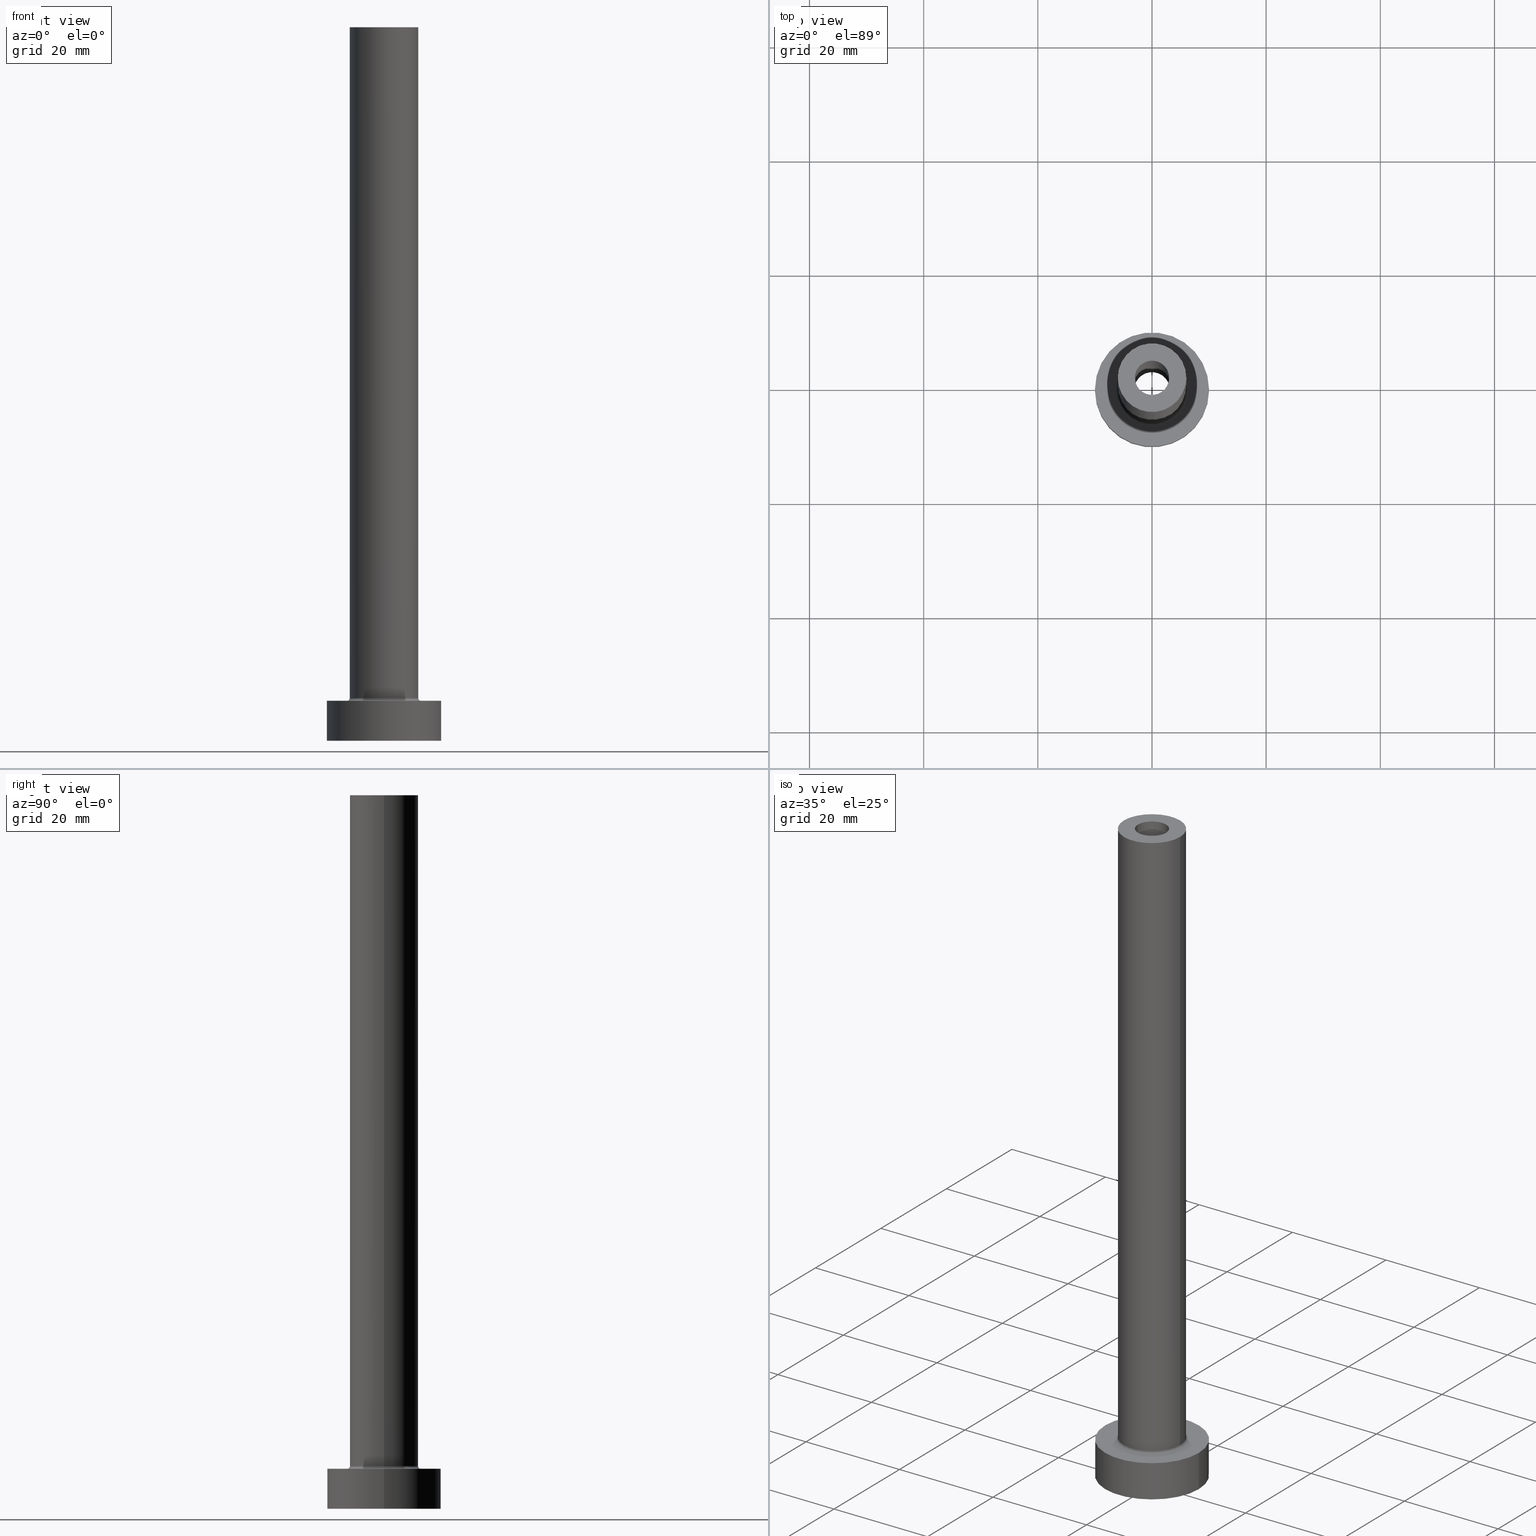
[diagram: canonical four-view strip — front | top / right | iso, engineering-drawing reading convention]
A machine part, canonical four-view strip (front | top / right | iso — engineering-drawing reading convention). The complete STEP part file that produces these views, byte-faithful:
ISO-10303-21;
HEADER;
FILE_DESCRIPTION (( 'STEP AP203' ),
    '1' );
FILE_NAME ('9289.STEP',
    '2023-02-13T15:02:41',
    ( '' ),
    ( '' ),
    'SwSTEP 2.0',
    'SolidWorks 2019',
    '' );
FILE_SCHEMA (( 'CONFIG_CONTROL_DESIGN' ));
ENDSEC;

DATA;
#1 = PERSON_AND_ORGANIZATION ( #332, #85 ) ;
#2 = DIRECTION ( 'NONE',  ( 0.000000000000000000, 0.000000000000000000, -1.000000000000000000 ) ) ;
#3 = ADVANCED_FACE ( 'NONE', ( #134 ), #59, .T. ) ;
#4 = AXIS2_PLACEMENT_3D ( 'NONE', #251, #255, #392 ) ;
#5 = APPROVAL_PERSON_ORGANIZATION ( #451, #344, #380 ) ;
#6 = ORIENTED_EDGE ( 'NONE', *, *, #436, .F. ) ;
#7 = ORIENTED_EDGE ( 'NONE', *, *, #409, .F. ) ;
#8 = CYLINDRICAL_SURFACE ( 'NONE', #91, 3.150000000000000355 ) ;
#9 = EDGE_LOOP ( 'NONE', ( #443, #7 ) ) ;
#10 = DIRECTION ( 'NONE',  ( -1.000000000000000000, 0.000000000000000000, 0.000000000000000000 ) ) ;
#11 = EDGE_LOOP ( 'NONE', ( #28, #334, #131, #123 ) ) ;
#12 = APPROVAL_ROLE ( '' ) ;
#13 = DIRECTION ( 'NONE',  ( 0.000000000000000000, 0.000000000000000000, -1.000000000000000000 ) ) ;
#14 = LINE ( 'NONE', #406, #390 ) ;
#15 = ORIENTED_EDGE ( 'NONE', *, *, #158, .T. ) ;
#16 = ADVANCED_FACE ( 'NONE', ( #280 ), #18, .F. ) ;
#17 = DIRECTION ( 'NONE',  ( -0.000000000000000000, -0.000000000000000000, -1.000000000000000000 ) ) ;
#18 = TOROIDAL_SURFACE ( 'NONE', #357, 6.500000000000000888, 0.5000000000000000000 ) ;
#19 = AXIS2_PLACEMENT_3D ( 'NONE', #156, #424, #393 ) ;
#20 = APPROVAL_STATUS ( 'not_yet_approved' ) ;
#21 = DIRECTION ( 'NONE',  ( 1.224646799147353207E-16, 1.000000000000000000, -0.000000000000000000 ) ) ;
#22 = ORIENTED_EDGE ( 'NONE', *, *, #126, .F. ) ;
#23 = COORDINATED_UNIVERSAL_TIME_OFFSET ( 1, 0, .AHEAD. ) ;
#24 = DIRECTION ( 'NONE',  ( 1.000000000000000000, 0.000000000000000000, 0.000000000000000000 ) ) ;
#25 = PLANE ( 'NONE',  #260 ) ;
#26 = CIRCLE ( 'NONE', #228, 3.150000000000000355 ) ;
#27 = AXIS2_PLACEMENT_3D ( 'NONE', #178, #346, #351 ) ;
#28 = ORIENTED_EDGE ( 'NONE', *, *, #220, .F. ) ;
#29 = DIRECTION ( 'NONE',  ( 0.000000000000000000, 0.000000000000000000, 1.000000000000000000 ) ) ;
#30 = DIRECTION ( 'NONE',  ( 0.000000000000000000, 0.000000000000000000, 1.000000000000000000 ) ) ;
#31 = VERTEX_POINT ( 'NONE', #172 ) ;
#32 = CARTESIAN_POINT ( 'NONE',  ( 0.000000000000000000, 0.000000000000000000, 125.0000000000000000 ) ) ;
#33 = EDGE_CURVE ( 'NONE', #438, #63, #148, .T. ) ;
#34 = CARTESIAN_POINT ( 'NONE',  ( 0.000000000000000000, 0.000000000000000000, 125.0000000000000000 ) ) ;
#35 = PERSON_AND_ORGANIZATION ( #332, #85 ) ;
#36 = DIRECTION ( 'NONE',  ( 0.000000000000000000, 0.000000000000000000, -1.000000000000000000 ) ) ;
#37 = DIRECTION ( 'NONE',  ( 0.000000000000000000, 0.000000000000000000, -1.000000000000000000 ) ) ;
#38 = CARTESIAN_POINT ( 'NONE',  ( 0.000000000000000000, 0.000000000000000000, 80.00000000000000000 ) ) ;
#39 = EDGE_CURVE ( 'NONE', #31, #76, #341, .T. ) ;
#40 = AXIS2_PLACEMENT_3D ( 'NONE', #194, #371, #238 ) ;
#41 = DIRECTION ( 'NONE',  ( 0.000000000000000000, 0.000000000000000000, -1.000000000000000000 ) ) ;
#42 = PRODUCT_DEFINITION_FORMATION_WITH_SPECIFIED_SOURCE ( 'LIBOVOLN�', '', #188, .NOT_KNOWN. ) ;
#43 = FACE_BOUND ( 'NONE', #429, .T. ) ;
#44 = PRODUCT_DEFINITION ( 'NEZN�M�', '', #42, #143 ) ;
#45 = FACE_OUTER_BOUND ( 'NONE', #399, .T. ) ;
#46 = EDGE_LOOP ( 'NONE', ( #125, #381, #368, #298 ) ) ;
#47 = EDGE_LOOP ( 'NONE', ( #410, #118, #292, #294 ) ) ;
#48 = CIRCLE ( 'NONE', #320, 6.500000000000000888 ) ;
#49 = FACE_OUTER_BOUND ( 'NONE', #297, .T. ) ;
#50 = ORIENTED_EDGE ( 'NONE', *, *, #279, .T. ) ;
#51 = VERTEX_POINT ( 'NONE', #236 ) ;
#52 = LINE ( 'NONE', #197, #303 ) ;
#53 = CARTESIAN_POINT ( 'NONE',  ( 0.000000000000000000, 0.000000000000000000, 7.000000000000000000 ) ) ;
#54 = ADVANCED_FACE ( 'NONE', ( #208, #56 ), #174, .F. ) ;
#55 = ORIENTED_EDGE ( 'NONE', *, *, #239, .F. ) ;
#56 = FACE_OUTER_BOUND ( 'NONE', #301, .T. ) ;
#57 = CYLINDRICAL_SURFACE ( 'NONE', #363, 10.00000000000000000 ) ;
#58 = AXIS2_PLACEMENT_3D ( 'NONE', #418, #2, #283 ) ;
#59 = CYLINDRICAL_SURFACE ( 'NONE', #77, 6.000000000000000888 ) ;
#60 = DIRECTION ( 'NONE',  ( -0.000000000000000000, -0.000000000000000000, -1.000000000000000000 ) ) ;
#61 = ADVANCED_FACE ( 'NONE', ( #412, #96 ), #25, .T. ) ;
#62 = ORIENTED_EDGE ( 'NONE', *, *, #330, .F. ) ;
#63 = VERTEX_POINT ( 'NONE', #338 ) ;
#64 = DIRECTION ( 'NONE',  ( 1.000000000000000000, 0.000000000000000000, 0.000000000000000000 ) ) ;
#65 = VECTOR ( 'NONE', #36, 1000.000000000000000 ) ;
#66 = DATE_TIME_ROLE ( 'classification_date' ) ;
#67 = DIRECTION ( 'NONE',  ( -1.000000000000000000, 0.000000000000000000, 0.000000000000000000 ) ) ;
#68 = EDGE_CURVE ( 'NONE', #218, #31, #14, .T. ) ;
#69 = CARTESIAN_POINT ( 'NONE',  ( 0.000000000000000000, 0.000000000000000000, 0.000000000000000000 ) ) ;
#70 = DIRECTION ( 'NONE',  ( 1.000000000000000000, 0.000000000000000000, 0.000000000000000000 ) ) ;
#71 = DIRECTION ( 'NONE',  ( 1.000000000000000000, 0.000000000000000000, 0.000000000000000000 ) ) ;
#72 = PERSON_AND_ORGANIZATION_ROLE ( 'design_owner' ) ;
#73 = CARTESIAN_POINT ( 'NONE',  ( 6.000000000000000888, 7.347880794884120722E-16, 7.500000000000007105 ) ) ;
#74 = CARTESIAN_POINT ( 'NONE',  ( 6.000000000000000888, 7.347880794884120722E-16, 125.0000000000000000 ) ) ;
#75 = CC_DESIGN_PERSON_AND_ORGANIZATION_ASSIGNMENT ( #89, #132, ( #44 ) ) ;
#76 = VERTEX_POINT ( 'NONE', #169 ) ;
#77 = AXIS2_PLACEMENT_3D ( 'NONE', #205, #60, #347 ) ;
#78 = AXIS2_PLACEMENT_3D ( 'NONE', #69, #254, #216 ) ;
#79 = CIRCLE ( 'NONE', #117, 6.000000000000000888 ) ;
#80 = ORIENTED_EDGE ( 'NONE', *, *, #33, .F. ) ;
#81 = PLANE ( 'NONE',  #441 ) ;
#82 = EDGE_LOOP ( 'NONE', ( #6, #340, #293, #234 ) ) ;
#83 = CIRCLE ( 'NONE', #223, 6.000000000000000888 ) ;
#84 = CARTESIAN_POINT ( 'NONE',  ( -10.00000000000000000, 0.000000000000000000, 7.000000000000000000 ) ) ;
#85 = ORGANIZATION ( 'NEUR�EN�', 'NEUR�EN�', '' ) ;
#86 = ORIENTED_EDGE ( 'NONE', *, *, #409, .T. ) ;
#87 = DIRECTION ( 'NONE',  ( 0.000000000000000000, 0.000000000000000000, 1.000000000000000000 ) ) ;
#88 = VERTEX_POINT ( 'NONE', #304 ) ;
#89 = PERSON_AND_ORGANIZATION ( #332, #85 ) ;
#90 = VERTEX_POINT ( 'NONE', #73 ) ;
#91 = AXIS2_PLACEMENT_3D ( 'NONE', #119, #13, #265 ) ;
#92 = SECURITY_CLASSIFICATION ( '', '', #219 ) ;
#93 = EDGE_LOOP ( 'NONE', ( #449, #242, #435, #135 ) ) ;
#94 = APPROVAL ( #317, 'NEUR�EN�' ) ;
#95 = DIRECTION ( 'NONE',  ( 0.000000000000000000, 0.000000000000000000, 1.000000000000000000 ) ) ;
#96 = FACE_OUTER_BOUND ( 'NONE', #121, .T. ) ;
#97 = CARTESIAN_POINT ( 'NONE',  ( 0.000000000000000000, 0.000000000000000000, 7.000000000000000000 ) ) ;
#98 = APPLICATION_CONTEXT ( 'configuration controlled 3d designs of mechanical parts and assemblies' ) ;
#99 = CARTESIAN_POINT ( 'NONE',  ( 3.150000000000000355, 3.857637417314163182E-16, 88.90954544295050255 ) ) ;
#100 = FACE_OUTER_BOUND ( 'NONE', #46, .T. ) ;
#101 = EDGE_CURVE ( 'NONE', #272, #414, #26, .T. ) ;
#102 = VECTOR ( 'NONE', #458, 1000.000000000000000 ) ;
#103 = DATE_AND_TIME ( #389, #261 ) ;
#104 = DIRECTION ( 'NONE',  ( 0.000000000000000000, 0.000000000000000000, 1.000000000000000000 ) ) ;
#105 = DIRECTION ( 'NONE',  ( 1.000000000000000000, 0.000000000000000000, 0.000000000000000000 ) ) ;
#106 = CARTESIAN_POINT ( 'NONE',  ( 0.000000000000000000, 0.000000000000000000, 0.000000000000000000 ) ) ;
#107 = SHAPE_DEFINITION_REPRESENTATION ( #113, #207 ) ;
#108 = CARTESIAN_POINT ( 'NONE',  ( -3.150000000000000355, 0.000000000000000000, 0.000000000000000000 ) ) ;
#109 = CALENDAR_DATE ( 2023, 13, 2 ) ;
#110 = EDGE_CURVE ( 'NONE', #90, #31, #210, .T. ) ;
#111 = LINE ( 'NONE', #74, #155 ) ;
#112 =( NAMED_UNIT ( * ) PLANE_ANGLE_UNIT ( ) SI_UNIT ( $, .RADIAN. ) );
#113 = PRODUCT_DEFINITION_SHAPE ( 'NONE', 'NONE',  #44 ) ;
#114 = ORIENTED_EDGE ( 'NONE', *, *, #247, .T. ) ;
#115 = EDGE_CURVE ( 'NONE', #90, #227, #369, .T. ) ;
#116 = AXIS2_PLACEMENT_3D ( 'NONE', #306, #440, #270 ) ;
#117 = AXIS2_PLACEMENT_3D ( 'NONE', #141, #246, #386 ) ;
#118 = ORIENTED_EDGE ( 'NONE', *, *, #326, .T. ) ;
#119 = CARTESIAN_POINT ( 'NONE',  ( 0.000000000000000000, 0.000000000000000000, 88.90954544295050255 ) ) ;
#120 = ORIENTED_EDGE ( 'NONE', *, *, #115, .T. ) ;
#121 = EDGE_LOOP ( 'NONE', ( #447, #367 ) ) ;
#122 = CARTESIAN_POINT ( 'NONE',  ( 0.000000000000000000, 0.000000000000000000, 88.90954544295050255 ) ) ;
#123 = ORIENTED_EDGE ( 'NONE', *, *, #101, .T. ) ;
#124 = APPLICATION_CONTEXT ( 'configuration controlled 3d designs of mechanical parts and assemblies' ) ;
#125 = ORIENTED_EDGE ( 'NONE', *, *, #136, .F. ) ;
#126 = EDGE_CURVE ( 'NONE', #88, #345, #192, .T. ) ;
#127 = CIRCLE ( 'NONE', #362, 6.500000000000000888 ) ;
#128 = DIRECTION ( 'NONE',  ( 0.000000000000000000, 0.000000000000000000, -1.000000000000000000 ) ) ;
#129 = AXIS2_PLACEMENT_3D ( 'NONE', #312, #95, #411 ) ;
#130 = ORIENTED_EDGE ( 'NONE', *, *, #136, .T. ) ;
#131 = ORIENTED_EDGE ( 'NONE', *, *, #364, .T. ) ;
#132 = PERSON_AND_ORGANIZATION_ROLE ( 'creator' ) ;
#133 = DIRECTION ( 'NONE',  ( -0.000000000000000000, -0.000000000000000000, -1.000000000000000000 ) ) ;
#134 = FACE_OUTER_BOUND ( 'NONE', #231, .T. ) ;
#135 = ORIENTED_EDGE ( 'NONE', *, *, #115, .F. ) ;
#136 = EDGE_CURVE ( 'NONE', #51, #233, #319, .T. ) ;
#137 = DIRECTION ( 'NONE',  ( 0.000000000000000000, 0.000000000000000000, -1.000000000000000000 ) ) ;
#138 = CLOSED_SHELL ( 'NONE', ( #196, #285, #16, #252, #395, #170, #61, #54, #3, #295, #212, #309, #300, #417 ) ) ;
#139 = CARTESIAN_POINT ( 'NONE',  ( 0.000000000000000000, 0.000000000000000000, 0.000000000000000000 ) ) ;
#140 = ORIENTED_EDGE ( 'NONE', *, *, #361, .F. ) ;
#141 = CARTESIAN_POINT ( 'NONE',  ( 0.000000000000000000, 0.000000000000000000, 7.500000000000007105 ) ) ;
#142 = EDGE_LOOP ( 'NONE', ( #193, #245 ) ) ;
#143 = DESIGN_CONTEXT ( 'detailed design', #124, 'design' ) ;
#144 = CYLINDRICAL_SURFACE ( 'NONE', #284, 3.000000000000000444 ) ;
#145 = CARTESIAN_POINT ( 'NONE',  ( 6.500000000000000888, 0.000000000000000000, 7.500000000000007105 ) ) ;
#146 = MANIFOLD_SOLID_BREP ( 'Odebrat vysunut�m4', #138 ) ;
#147 = CYLINDRICAL_SURFACE ( 'NONE', #328, 6.000000000000000888 ) ;
#148 = CIRCLE ( 'NONE', #116, 3.150000000000000355 ) ;
#149 = APPROVAL_PERSON_ORGANIZATION ( #359, #426, #12 ) ;
#150 = DIRECTION ( 'NONE',  ( -0.000000000000000000, -0.000000000000000000, -1.000000000000000000 ) ) ;
#151 = FACE_OUTER_BOUND ( 'NONE', #47, .T. ) ;
#152 = PERSON_AND_ORGANIZATION_ROLE ( 'design_supplier' ) ;
#153 = CARTESIAN_POINT ( 'NONE',  ( 10.00000000000000000, 1.224646799147353256E-15, 7.000000000000000000 ) ) ;
#154 = AXIS2_PLACEMENT_3D ( 'NONE', #187, #282, #67 ) ;
#155 = VECTOR ( 'NONE', #258, 1000.000000000000000 ) ;
#156 = CARTESIAN_POINT ( 'NONE',  ( 0.000000000000000000, 0.000000000000000000, 125.0000000000000000 ) ) ;
#157 = ORIENTED_EDGE ( 'NONE', *, *, #364, .F. ) ;
#158 = EDGE_CURVE ( 'NONE', #240, #160, #202, .T. ) ;
#159 = ORIENTED_EDGE ( 'NONE', *, *, #402, .T. ) ;
#160 = VERTEX_POINT ( 'NONE', #358 ) ;
#161 = AXIS2_PLACEMENT_3D ( 'NONE', #182, #422, #71 ) ;
#162 =( GEOMETRIC_REPRESENTATION_CONTEXT ( 3 ) GLOBAL_UNCERTAINTY_ASSIGNED_CONTEXT ( ( #314 ) ) GLOBAL_UNIT_ASSIGNED_CONTEXT ( ( #186, #112, #221 ) ) REPRESENTATION_CONTEXT ( 'NONE', 'WORKASPACE' ) );
#163 = ORIENTED_EDGE ( 'NONE', *, *, #247, .F. ) ;
#164 = CARTESIAN_POINT ( 'NONE',  ( 0.000000000000000000, 0.000000000000000000, 125.0000000000000000 ) ) ;
#165 = CC_DESIGN_PERSON_AND_ORGANIZATION_ASSIGNMENT ( #35, #72, ( #188 ) ) ;
#166 = ORIENTED_EDGE ( 'NONE', *, *, #220, .T. ) ;
#167 = CYLINDRICAL_SURFACE ( 'NONE', #229, 3.150000000000000355 ) ;
#168 = AXIS2_PLACEMENT_3D ( 'NONE', #164, #299, #437 ) ;
#169 = CARTESIAN_POINT ( 'NONE',  ( -6.500000000000000888, 7.960204194457796463E-16, 7.000000000000002665 ) ) ;
#170 = ADVANCED_FACE ( 'NONE', ( #100 ), #249, .T. ) ;
#171 = ORIENTED_EDGE ( 'NONE', *, *, #459, .T. ) ;
#172 = CARTESIAN_POINT ( 'NONE',  ( -6.000000000000000888, 0.000000000000000000, 7.500000000000007105 ) ) ;
#173 = TOROIDAL_SURFACE ( 'NONE', #161, 6.500000000000000888, 0.5000000000000000000 ) ;
#174 = PLANE ( 'NONE',  #275 ) ;
#175 = CALENDAR_DATE ( 2023, 13, 2 ) ;
#176 = CARTESIAN_POINT ( 'NONE',  ( 0.000000000000000000, 0.000000000000000000, 0.000000000000000000 ) ) ;
#177 = DIRECTION ( 'NONE',  ( -1.000000000000000000, 0.000000000000000000, 0.000000000000000000 ) ) ;
#178 = CARTESIAN_POINT ( 'NONE',  ( 0.000000000000000000, 0.000000000000000000, 0.000000000000000000 ) ) ;
#179 = DIRECTION ( 'NONE',  ( 1.000000000000000000, 0.000000000000000000, 0.000000000000000000 ) ) ;
#180 = ORIENTED_EDGE ( 'NONE', *, *, #110, .F. ) ;
#181 = PERSON_AND_ORGANIZATION_ROLE ( 'classification_officer' ) ;
#182 = CARTESIAN_POINT ( 'NONE',  ( 0.000000000000000000, 0.000000000000000000, 7.500000000000007105 ) ) ;
#183 = CC_DESIGN_SECURITY_CLASSIFICATION ( #92, ( #42 ) ) ;
#184 = DIRECTION ( 'NONE',  ( 0.000000000000000000, 0.000000000000000000, 1.000000000000000000 ) ) ;
#185 = CC_DESIGN_PERSON_AND_ORGANIZATION_ASSIGNMENT ( #1, #152, ( #42 ) ) ;
#186 =( LENGTH_UNIT ( ) NAMED_UNIT ( * ) SI_UNIT ( .MILLI., .METRE. ) );
#187 = CARTESIAN_POINT ( 'NONE',  ( 0.000000000000000000, 0.000000000000000000, 7.000000000000000000 ) ) ;
#188 = PRODUCT ( '9289', '9289', '', ( #354 ) ) ;
#189 = AXIS2_PLACEMENT_3D ( 'NONE', #374, #21, #308 ) ;
#190 = LOCAL_TIME ( 16, 2, 41.00000000000000000, #430 ) ;
#191 = ORIENTED_EDGE ( 'NONE', *, *, #428, .F. ) ;
#192 = CIRCLE ( 'NONE', #396, 3.000000000000000444 ) ;
#193 = ORIENTED_EDGE ( 'NONE', *, *, #239, .T. ) ;
#194 = CARTESIAN_POINT ( 'NONE',  ( 0.000000000000000000, 0.000000000000000000, 80.00000000000000000 ) ) ;
#195 = ORIENTED_EDGE ( 'NONE', *, *, #379, .F. ) ;
#196 = ADVANCED_FACE ( 'NONE', ( #151 ), #325, .F. ) ;
#197 = CARTESIAN_POINT ( 'NONE',  ( 3.000000000000000444, 3.673940397442059868E-16, 125.0000000000000000 ) ) ;
#198 = DIRECTION ( 'NONE',  ( 0.000000000000000000, 0.000000000000000000, 1.000000000000000000 ) ) ;
#199 = ORIENTED_EDGE ( 'NONE', *, *, #318, .F. ) ;
#200 = DIRECTION ( 'NONE',  ( 1.000000000000000000, 0.000000000000000000, -0.000000000000000000 ) ) ;
#201 = EDGE_CURVE ( 'NONE', #274, #51, #403, .T. ) ;
#202 = CIRCLE ( 'NONE', #455, 3.000000000000000444 ) ;
#203 = LOCAL_TIME ( 16, 2, 41.00000000000000000, #23 ) ;
#204 = DIRECTION ( 'NONE',  ( -1.000000000000000000, 0.000000000000000000, 0.000000000000000000 ) ) ;
#205 = CARTESIAN_POINT ( 'NONE',  ( 0.000000000000000000, 0.000000000000000000, 125.0000000000000000 ) ) ;
#206 = ORIENTED_EDGE ( 'NONE', *, *, #126, .T. ) ;
#207 = ADVANCED_BREP_SHAPE_REPRESENTATION ( '9289', ( #146, #78 ), #162 ) ;
#208 = FACE_BOUND ( 'NONE', #9, .T. ) ;
#209 = EDGE_LOOP ( 'NONE', ( #140, #130, #302, #62 ) ) ;
#210 = CIRCLE ( 'NONE', #4, 6.000000000000000888 ) ;
#211 = CARTESIAN_POINT ( 'NONE',  ( -10.00000000000000000, 0.000000000000000000, 0.000000000000000000 ) ) ;
#212 = ADVANCED_FACE ( 'NONE', ( #453 ), #173, .F. ) ;
#213 = APPROVAL_ROLE ( '' ) ;
#214 = DIRECTION ( 'NONE',  ( -0.000000000000000000, -0.000000000000000000, -1.000000000000000000 ) ) ;
#215 = DIRECTION ( 'NONE',  ( 1.000000000000000000, 0.000000000000000000, 0.000000000000000000 ) ) ;
#216 = DIRECTION ( 'NONE',  ( 1.000000000000000000, 0.000000000000000000, 0.000000000000000000 ) ) ;
#217 = CARTESIAN_POINT ( 'NONE',  ( -6.000000000000000888, 0.000000000000000000, 125.0000000000000000 ) ) ;
#218 = VERTEX_POINT ( 'NONE', #217 ) ;
#219 = SECURITY_CLASSIFICATION_LEVEL ( 'unclassified' ) ;
#220 = EDGE_CURVE ( 'NONE', #438, #414, #353, .T. ) ;
#221 =( NAMED_UNIT ( * ) SI_UNIT ( $, .STERADIAN. ) SOLID_ANGLE_UNIT ( ) );
#222 = CARTESIAN_POINT ( 'NONE',  ( -3.000000000000000444, 0.000000000000000000, 125.0000000000000000 ) ) ;
#223 = AXIS2_PLACEMENT_3D ( 'NONE', #32, #104, #64 ) ;
#224 = APPLICATION_PROTOCOL_DEFINITION ( 'international standard', 'config_control_design', 1994, #124 ) ;
#225 = DIRECTION ( 'NONE',  ( -0.000000000000000000, -0.000000000000000000, -1.000000000000000000 ) ) ;
#226 = APPLICATION_PROTOCOL_DEFINITION ( 'international standard', 'config_control_design', 1994, #98 ) ;
#227 = VERTEX_POINT ( 'NONE', #287 ) ;
#228 = AXIS2_PLACEMENT_3D ( 'NONE', #106, #225, #179 ) ;
#229 = AXIS2_PLACEMENT_3D ( 'NONE', #122, #439, #10 ) ;
#230 = CIRCLE ( 'NONE', #19, 6.000000000000000888 ) ;
#231 = EDGE_LOOP ( 'NONE', ( #191, #55, #407, #159 ) ) ;
#232 = EDGE_CURVE ( 'NONE', #76, #227, #48, .T. ) ;
#233 = VERTEX_POINT ( 'NONE', #385 ) ;
#234 = ORIENTED_EDGE ( 'NONE', *, *, #68, .F. ) ;
#235 = DIRECTION ( 'NONE',  ( 1.000000000000000000, 0.000000000000000000, -0.000000000000000000 ) ) ;
#236 = CARTESIAN_POINT ( 'NONE',  ( 10.00000000000000000, 1.224646799147353256E-15, 7.000000000000000000 ) ) ;
#237 = EDGE_LOOP ( 'NONE', ( #50, #423 ) ) ;
#238 = DIRECTION ( 'NONE',  ( 1.000000000000000000, 0.000000000000000000, -0.000000000000000000 ) ) ;
#239 = EDGE_CURVE ( 'NONE', #218, #349, #83, .T. ) ;
#240 = VERTEX_POINT ( 'NONE', #461 ) ;
#241 = CALENDAR_DATE ( 2023, 13, 2 ) ;
#242 = ORIENTED_EDGE ( 'NONE', *, *, #39, .T. ) ;
#243 = AXIS2_PLACEMENT_3D ( 'NONE', #38, #327, #105 ) ;
#244 = VERTEX_POINT ( 'NONE', #211 ) ;
#245 = ORIENTED_EDGE ( 'NONE', *, *, #436, .T. ) ;
#246 = DIRECTION ( 'NONE',  ( 0.000000000000000000, 0.000000000000000000, 1.000000000000000000 ) ) ;
#247 = EDGE_CURVE ( 'NONE', #63, #438, #431, .T. ) ;
#248 = DIRECTION ( 'NONE',  ( 1.000000000000000000, 0.000000000000000000, 0.000000000000000000 ) ) ;
#249 = CYLINDRICAL_SURFACE ( 'NONE', #154, 10.00000000000000000 ) ;
#250 = APPROVAL_DATE_TIME ( #460, #94 ) ;
#251 = CARTESIAN_POINT ( 'NONE',  ( 0.000000000000000000, 0.000000000000000000, 7.500000000000007105 ) ) ;
#252 = ADVANCED_FACE ( 'NONE', ( #427 ), #147, .T. ) ;
#253 = PERSON_AND_ORGANIZATION_ROLE ( 'creator' ) ;
#254 = DIRECTION ( 'NONE',  ( 0.000000000000000000, 0.000000000000000000, 1.000000000000000000 ) ) ;
#255 = DIRECTION ( 'NONE',  ( 0.000000000000000000, 0.000000000000000000, 1.000000000000000000 ) ) ;
#256 = DIRECTION ( 'NONE',  ( 0.000000000000000000, -1.000000000000000000, 0.000000000000000000 ) ) ;
#257 = AXIS2_PLACEMENT_3D ( 'NONE', #145, #256, #37 ) ;
#258 = DIRECTION ( 'NONE',  ( -0.000000000000000000, -0.000000000000000000, -1.000000000000000000 ) ) ;
#259 = PERSON_AND_ORGANIZATION ( #332, #85 ) ;
#260 = AXIS2_PLACEMENT_3D ( 'NONE', #53, #198, #200 ) ;
#261 = LOCAL_TIME ( 16, 2, 41.00000000000000000, #290 ) ;
#262 = CC_DESIGN_PERSON_AND_ORGANIZATION_ASSIGNMENT ( #415, #253, ( #42 ) ) ;
#263 = EDGE_LOOP ( 'NONE', ( #199, #383 ) ) ;
#264 = DATE_AND_TIME ( #333, #190 ) ;
#265 = DIRECTION ( 'NONE',  ( -1.000000000000000000, 0.000000000000000000, 0.000000000000000000 ) ) ;
#266 = DIRECTION ( 'NONE',  ( 0.000000000000000000, 0.000000000000000000, 1.000000000000000000 ) ) ;
#267 = EDGE_LOOP ( 'NONE', ( #376, #15, #394, #22 ) ) ;
#268 = LOCAL_TIME ( 16, 2, 41.00000000000000000, #356 ) ;
#269 = EDGE_CURVE ( 'NONE', #160, #345, #316, .T. ) ;
#270 = DIRECTION ( 'NONE',  ( 1.000000000000000000, 0.000000000000000000, 0.000000000000000000 ) ) ;
#271 = DIRECTION ( 'NONE',  ( -0.000000000000000000, -0.000000000000000000, -1.000000000000000000 ) ) ;
#272 = VERTEX_POINT ( 'NONE', #108 ) ;
#273 = DATE_AND_TIME ( #241, #203 ) ;
#274 = VERTEX_POINT ( 'NONE', #84 ) ;
#275 = AXIS2_PLACEMENT_3D ( 'NONE', #139, #313, #278 ) ;
#276 = AXIS2_PLACEMENT_3D ( 'NONE', #176, #271, #448 ) ;
#277 = CARTESIAN_POINT ( 'NONE',  ( -10.00000000000000000, 0.000000000000000000, 7.000000000000000000 ) ) ;
#278 = DIRECTION ( 'NONE',  ( 1.000000000000000000, 0.000000000000000000, -0.000000000000000000 ) ) ;
#279 = EDGE_CURVE ( 'NONE', #227, #76, #127, .T. ) ;
#280 = FACE_OUTER_BOUND ( 'NONE', #93, .T. ) ;
#281 = APPROVAL_DATE_TIME ( #315, #344 ) ;
#282 = DIRECTION ( 'NONE',  ( -0.000000000000000000, -0.000000000000000000, -1.000000000000000000 ) ) ;
#283 = DIRECTION ( 'NONE',  ( -1.000000000000000000, 0.000000000000000000, 0.000000000000000000 ) ) ;
#284 = AXIS2_PLACEMENT_3D ( 'NONE', #416, #41, #321 ) ;
#285 = ADVANCED_FACE ( 'NONE', ( #45 ), #8, .F. ) ;
#286 = DIRECTION ( 'NONE',  ( -0.000000000000000000, -0.000000000000000000, -1.000000000000000000 ) ) ;
#287 = CARTESIAN_POINT ( 'NONE',  ( 6.500000000000000888, 0.000000000000000000, 7.000000000000002665 ) ) ;
#288 = CARTESIAN_POINT ( 'NONE',  ( 0.000000000000000000, 0.000000000000000000, 7.000000000000000000 ) ) ;
#289 = CC_DESIGN_APPROVAL ( #94, ( #92 ) ) ;
#290 = COORDINATED_UNIVERSAL_TIME_OFFSET ( 1, 0, .AHEAD. ) ;
#291 = CC_DESIGN_DATE_AND_TIME_ASSIGNMENT ( #103, #66, ( #92 ) ) ;
#292 = ORIENTED_EDGE ( 'NONE', *, *, #459, .F. ) ;
#293 = ORIENTED_EDGE ( 'NONE', *, *, #110, .T. ) ;
#294 = ORIENTED_EDGE ( 'NONE', *, *, #269, .F. ) ;
#295 = ADVANCED_FACE ( 'NONE', ( #401, #397 ), #81, .T. ) ;
#296 = CIRCLE ( 'NONE', #378, 10.00000000000000000 ) ;
#297 = EDGE_LOOP ( 'NONE', ( #163, #80 ) ) ;
#298 = ORIENTED_EDGE ( 'NONE', *, *, #379, .T. ) ;
#299 = DIRECTION ( 'NONE',  ( 0.000000000000000000, 0.000000000000000000, 1.000000000000000000 ) ) ;
#300 = ADVANCED_FACE ( 'NONE', ( #43, #49 ), #337, .F. ) ;
#301 = EDGE_LOOP ( 'NONE', ( #195, #433 ) ) ;
#302 = ORIENTED_EDGE ( 'NONE', *, *, #339, .T. ) ;
#303 = VECTOR ( 'NONE', #128, 1000.000000000000000 ) ;
#304 = CARTESIAN_POINT ( 'NONE',  ( 3.000000000000000444, 3.673940397442059868E-16, 80.00000000000000000 ) ) ;
#305 = CARTESIAN_POINT ( 'NONE',  ( 0.000000000000000000, 0.000000000000000000, 0.000000000000000000 ) ) ;
#306 = CARTESIAN_POINT ( 'NONE',  ( 0.000000000000000000, 0.000000000000000000, 80.00000000000000000 ) ) ;
#307 = LINE ( 'NONE', #277, #391 ) ;
#308 = DIRECTION ( 'NONE',  ( -1.000000000000000000, 1.224646799147351482E-16, 0.000000000000000000 ) ) ;
#309 = ADVANCED_FACE ( 'NONE', ( #335 ), #167, .F. ) ;
#310 = AXIS2_PLACEMENT_3D ( 'NONE', #352, #30, #454 ) ;
#311 = APPROVAL_PERSON_ORGANIZATION ( #419, #94, #213 ) ;
#312 = CARTESIAN_POINT ( 'NONE',  ( 0.000000000000000000, 0.000000000000000000, 7.000000000000000000 ) ) ;
#313 = DIRECTION ( 'NONE',  ( 0.000000000000000000, 0.000000000000000000, 1.000000000000000000 ) ) ;
#314 = UNCERTAINTY_MEASURE_WITH_UNIT (LENGTH_MEASURE( 1.000000000000000082E-05 ), #186, 'distance_accuracy_value', 'NONE');
#315 = DATE_AND_TIME ( #175, #442 ) ;
#316 = LINE ( 'NONE', #222, #65 ) ;
#317 = APPROVAL_STATUS ( 'not_yet_approved' ) ;
#318 = EDGE_CURVE ( 'NONE', #160, #240, #420, .T. ) ;
#319 = LINE ( 'NONE', #153, #377 ) ;
#320 = AXIS2_PLACEMENT_3D ( 'NONE', #355, #150, #248 ) ;
#321 = DIRECTION ( 'NONE',  ( -1.000000000000000000, 0.000000000000000000, 0.000000000000000000 ) ) ;
#322 = CIRCLE ( 'NONE', #129, 10.00000000000000000 ) ;
#323 = DIRECTION ( 'NONE',  ( 0.000000000000000000, 0.000000000000000000, 1.000000000000000000 ) ) ;
#324 = CARTESIAN_POINT ( 'NONE',  ( 0.000000000000000000, 0.000000000000000000, 125.0000000000000000 ) ) ;
#325 = CYLINDRICAL_SURFACE ( 'NONE', #58, 3.000000000000000444 ) ;
#326 = EDGE_CURVE ( 'NONE', #240, #88, #52, .T. ) ;
#327 = DIRECTION ( 'NONE',  ( 0.000000000000000000, 0.000000000000000000, 1.000000000000000000 ) ) ;
#328 = AXIS2_PLACEMENT_3D ( 'NONE', #324, #286, #177 ) ;
#329 = VECTOR ( 'NONE', #137, 1000.000000000000000 ) ;
#330 = EDGE_CURVE ( 'NONE', #274, #244, #307, .T. ) ;
#331 = DIRECTION ( 'NONE',  ( 1.000000000000000000, 0.000000000000000000, 0.000000000000000000 ) ) ;
#332 = PERSON ( 'NEUR�EN�', 'NEUR�EN�', 'NEUR�EN�', ('NEUR�EN�'), ('NEUR�EN�'), ('NEUR�EN�') ) ;
#333 = CALENDAR_DATE ( 2023, 13, 2 ) ;
#334 = ORIENTED_EDGE ( 'NONE', *, *, #33, .T. ) ;
#335 = FACE_OUTER_BOUND ( 'NONE', #11, .T. ) ;
#336 = ORIENTED_EDGE ( 'NONE', *, *, #39, .F. ) ;
#337 = PLANE ( 'NONE',  #40 ) ;
#338 = CARTESIAN_POINT ( 'NONE',  ( -3.150000000000000355, 0.000000000000000000, 80.00000000000000000 ) ) ;
#339 = EDGE_CURVE ( 'NONE', #233, #244, #432, .T. ) ;
#340 = ORIENTED_EDGE ( 'NONE', *, *, #428, .T. ) ;
#341 = CIRCLE ( 'NONE', #189, 0.5000000000000004441 ) ;
#342 = DATE_TIME_ROLE ( 'creation_date' ) ;
#343 = DIRECTION ( 'NONE',  ( 1.000000000000000000, 0.000000000000000000, 0.000000000000000000 ) ) ;
#344 = APPROVAL ( #20, 'NEUR�EN�' ) ;
#345 = VERTEX_POINT ( 'NONE', #408 ) ;
#346 = DIRECTION ( 'NONE',  ( 0.000000000000000000, 0.000000000000000000, 1.000000000000000000 ) ) ;
#347 = DIRECTION ( 'NONE',  ( -1.000000000000000000, 0.000000000000000000, 0.000000000000000000 ) ) ;
#348 = PRODUCT_RELATED_PRODUCT_CATEGORY ( 'detail', '', ( #188 ) ) ;
#349 = VERTEX_POINT ( 'NONE', #446 ) ;
#350 = AXIS2_PLACEMENT_3D ( 'NONE', #288, #387, #215 ) ;
#351 = DIRECTION ( 'NONE',  ( 1.000000000000000000, 0.000000000000000000, 0.000000000000000000 ) ) ;
#352 = CARTESIAN_POINT ( 'NONE',  ( 0.000000000000000000, 0.000000000000000000, 80.00000000000000000 ) ) ;
#353 = LINE ( 'NONE', #99, #102 ) ;
#354 = MECHANICAL_CONTEXT ( 'NONE', #98, 'mechanical' ) ;
#355 = CARTESIAN_POINT ( 'NONE',  ( 0.000000000000000000, 0.000000000000000000, 7.000000000000000000 ) ) ;
#356 = COORDINATED_UNIVERSAL_TIME_OFFSET ( 1, 0, .AHEAD. ) ;
#357 = AXIS2_PLACEMENT_3D ( 'NONE', #372, #87, #343 ) ;
#358 = CARTESIAN_POINT ( 'NONE',  ( -3.000000000000000444, 0.000000000000000000, 125.0000000000000000 ) ) ;
#359 = PERSON_AND_ORGANIZATION ( #332, #85 ) ;
#360 = DIRECTION ( 'NONE',  ( 1.000000000000000000, 0.000000000000000000, 0.000000000000000000 ) ) ;
#361 = EDGE_CURVE ( 'NONE', #51, #274, #322, .T. ) ;
#362 = AXIS2_PLACEMENT_3D ( 'NONE', #434, #405, #331 ) ;
#363 = AXIS2_PLACEMENT_3D ( 'NONE', #97, #214, #204 ) ;
#364 = EDGE_CURVE ( 'NONE', #63, #272, #382, .T. ) ;
#365 = APPROVAL_STATUS ( 'not_yet_approved' ) ;
#366 = CARTESIAN_POINT ( 'NONE',  ( 0.000000000000000000, 0.000000000000000000, 125.0000000000000000 ) ) ;
#367 = ORIENTED_EDGE ( 'NONE', *, *, #361, .T. ) ;
#368 = ORIENTED_EDGE ( 'NONE', *, *, #330, .T. ) ;
#369 = CIRCLE ( 'NONE', #257, 0.5000000000000004441 ) ;
#370 = EDGE_LOOP ( 'NONE', ( #336, #180, #120, #445 ) ) ;
#371 = DIRECTION ( 'NONE',  ( 0.000000000000000000, 0.000000000000000000, 1.000000000000000000 ) ) ;
#372 = CARTESIAN_POINT ( 'NONE',  ( 0.000000000000000000, 0.000000000000000000, 7.500000000000007105 ) ) ;
#373 = CC_DESIGN_PERSON_AND_ORGANIZATION_ASSIGNMENT ( #259, #181, ( #92 ) ) ;
#374 = CARTESIAN_POINT ( 'NONE',  ( -6.500000000000000888, 7.960204194457796463E-16, 7.500000000000007105 ) ) ;
#375 = CARTESIAN_POINT ( 'NONE',  ( -3.150000000000000355, 0.000000000000000000, 88.90954544295050255 ) ) ;
#376 = ORIENTED_EDGE ( 'NONE', *, *, #326, .F. ) ;
#377 = VECTOR ( 'NONE', #425, 1000.000000000000000 ) ;
#378 = AXIS2_PLACEMENT_3D ( 'NONE', #305, #29, #24 ) ;
#379 = EDGE_CURVE ( 'NONE', #244, #233, #296, .T. ) ;
#380 = APPROVAL_ROLE ( '' ) ;
#381 = ORIENTED_EDGE ( 'NONE', *, *, #201, .F. ) ;
#382 = LINE ( 'NONE', #375, #329 ) ;
#383 = ORIENTED_EDGE ( 'NONE', *, *, #158, .F. ) ;
#384 = CARTESIAN_POINT ( 'NONE',  ( 3.150000000000000355, 3.857637417314163182E-16, 0.000000000000000000 ) ) ;
#385 = CARTESIAN_POINT ( 'NONE',  ( 10.00000000000000000, 1.224646799147353256E-15, 0.000000000000000000 ) ) ;
#386 = DIRECTION ( 'NONE',  ( 1.000000000000000000, 0.000000000000000000, 0.000000000000000000 ) ) ;
#387 = DIRECTION ( 'NONE',  ( 0.000000000000000000, 0.000000000000000000, 1.000000000000000000 ) ) ;
#388 = CARTESIAN_POINT ( 'NONE',  ( 0.000000000000000000, 0.000000000000000000, 80.00000000000000000 ) ) ;
#389 = CALENDAR_DATE ( 2023, 13, 2 ) ;
#390 = VECTOR ( 'NONE', #17, 1000.000000000000000 ) ;
#391 = VECTOR ( 'NONE', #133, 1000.000000000000000 ) ;
#392 = DIRECTION ( 'NONE',  ( 1.000000000000000000, 0.000000000000000000, 0.000000000000000000 ) ) ;
#393 = DIRECTION ( 'NONE',  ( 1.000000000000000000, 0.000000000000000000, 0.000000000000000000 ) ) ;
#394 = ORIENTED_EDGE ( 'NONE', *, *, #269, .T. ) ;
#395 = ADVANCED_FACE ( 'NONE', ( #413 ), #57, .T. ) ;
#396 = AXIS2_PLACEMENT_3D ( 'NONE', #388, #323, #360 ) ;
#397 = FACE_OUTER_BOUND ( 'NONE', #142, .T. ) ;
#398 = CC_DESIGN_APPROVAL ( #426, ( #44 ) ) ;
#399 = EDGE_LOOP ( 'NONE', ( #114, #166, #86, #157 ) ) ;
#400 = APPROVAL_DATE_TIME ( #264, #426 ) ;
#401 = FACE_BOUND ( 'NONE', #263, .T. ) ;
#402 = EDGE_CURVE ( 'NONE', #31, #90, #79, .T. ) ;
#403 = CIRCLE ( 'NONE', #350, 10.00000000000000000 ) ;
#404 = CIRCLE ( 'NONE', #243, 3.000000000000000444 ) ;
#405 = DIRECTION ( 'NONE',  ( -0.000000000000000000, -0.000000000000000000, -1.000000000000000000 ) ) ;
#406 = CARTESIAN_POINT ( 'NONE',  ( -6.000000000000000888, 0.000000000000000000, 125.0000000000000000 ) ) ;
#407 = ORIENTED_EDGE ( 'NONE', *, *, #68, .T. ) ;
#408 = CARTESIAN_POINT ( 'NONE',  ( -3.000000000000000444, 0.000000000000000000, 80.00000000000000000 ) ) ;
#409 = EDGE_CURVE ( 'NONE', #414, #272, #421, .T. ) ;
#410 = ORIENTED_EDGE ( 'NONE', *, *, #318, .T. ) ;
#411 = DIRECTION ( 'NONE',  ( 1.000000000000000000, 0.000000000000000000, 0.000000000000000000 ) ) ;
#412 = FACE_BOUND ( 'NONE', #237, .T. ) ;
#413 = FACE_OUTER_BOUND ( 'NONE', #209, .T. ) ;
#414 = VERTEX_POINT ( 'NONE', #384 ) ;
#415 = PERSON_AND_ORGANIZATION ( #332, #85 ) ;
#416 = CARTESIAN_POINT ( 'NONE',  ( 0.000000000000000000, 0.000000000000000000, 125.0000000000000000 ) ) ;
#417 = ADVANCED_FACE ( 'NONE', ( #452 ), #144, .F. ) ;
#418 = CARTESIAN_POINT ( 'NONE',  ( 0.000000000000000000, 0.000000000000000000, 125.0000000000000000 ) ) ;
#420 = CIRCLE ( 'NONE', #168, 3.000000000000000444 ) ;
#419 = PERSON_AND_ORGANIZATION ( #332, #85 ) ;
#421 = CIRCLE ( 'NONE', #276, 3.150000000000000355 ) ;
#422 = DIRECTION ( 'NONE',  ( 0.000000000000000000, 0.000000000000000000, 1.000000000000000000 ) ) ;
#423 = ORIENTED_EDGE ( 'NONE', *, *, #232, .T. ) ;
#424 = DIRECTION ( 'NONE',  ( 0.000000000000000000, 0.000000000000000000, 1.000000000000000000 ) ) ;
#425 = DIRECTION ( 'NONE',  ( -0.000000000000000000, -0.000000000000000000, -1.000000000000000000 ) ) ;
#426 = APPROVAL ( #365, 'NEUR�EN�' ) ;
#427 = FACE_OUTER_BOUND ( 'NONE', #82, .T. ) ;
#428 = EDGE_CURVE ( 'NONE', #349, #90, #111, .T. ) ;
#429 = EDGE_LOOP ( 'NONE', ( #171, #206 ) ) ;
#430 = COORDINATED_UNIVERSAL_TIME_OFFSET ( 1, 0, .AHEAD. ) ;
#431 = CIRCLE ( 'NONE', #310, 3.150000000000000355 ) ;
#432 = CIRCLE ( 'NONE', #27, 10.00000000000000000 ) ;
#433 = ORIENTED_EDGE ( 'NONE', *, *, #339, .F. ) ;
#434 = CARTESIAN_POINT ( 'NONE',  ( 0.000000000000000000, 0.000000000000000000, 7.000000000000000000 ) ) ;
#435 = ORIENTED_EDGE ( 'NONE', *, *, #279, .F. ) ;
#436 = EDGE_CURVE ( 'NONE', #349, #218, #230, .T. ) ;
#437 = DIRECTION ( 'NONE',  ( 1.000000000000000000, 0.000000000000000000, 0.000000000000000000 ) ) ;
#438 = VERTEX_POINT ( 'NONE', #457 ) ;
#439 = DIRECTION ( 'NONE',  ( 0.000000000000000000, 0.000000000000000000, -1.000000000000000000 ) ) ;
#440 = DIRECTION ( 'NONE',  ( 0.000000000000000000, 0.000000000000000000, 1.000000000000000000 ) ) ;
#441 = AXIS2_PLACEMENT_3D ( 'NONE', #366, #266, #235 ) ;
#442 = LOCAL_TIME ( 16, 2, 41.00000000000000000, #444 ) ;
#443 = ORIENTED_EDGE ( 'NONE', *, *, #101, .F. ) ;
#444 = COORDINATED_UNIVERSAL_TIME_OFFSET ( 1, 0, .AHEAD. ) ;
#445 = ORIENTED_EDGE ( 'NONE', *, *, #232, .F. ) ;
#446 = CARTESIAN_POINT ( 'NONE',  ( 6.000000000000000888, 7.347880794884120722E-16, 125.0000000000000000 ) ) ;
#447 = ORIENTED_EDGE ( 'NONE', *, *, #201, .T. ) ;
#448 = DIRECTION ( 'NONE',  ( 1.000000000000000000, 0.000000000000000000, 0.000000000000000000 ) ) ;
#449 = ORIENTED_EDGE ( 'NONE', *, *, #402, .F. ) ;
#450 = CC_DESIGN_DATE_AND_TIME_ASSIGNMENT ( #273, #342, ( #44 ) ) ;
#451 = PERSON_AND_ORGANIZATION ( #332, #85 ) ;
#452 = FACE_OUTER_BOUND ( 'NONE', #267, .T. ) ;
#453 = FACE_OUTER_BOUND ( 'NONE', #370, .T. ) ;
#454 = DIRECTION ( 'NONE',  ( 1.000000000000000000, 0.000000000000000000, 0.000000000000000000 ) ) ;
#455 = AXIS2_PLACEMENT_3D ( 'NONE', #34, #184, #70 ) ;
#456 = CC_DESIGN_APPROVAL ( #344, ( #42 ) ) ;
#457 = CARTESIAN_POINT ( 'NONE',  ( 3.150000000000000355, 3.857637417314163182E-16, 80.00000000000000000 ) ) ;
#458 = DIRECTION ( 'NONE',  ( 0.000000000000000000, 0.000000000000000000, -1.000000000000000000 ) ) ;
#459 = EDGE_CURVE ( 'NONE', #345, #88, #404, .T. ) ;
#460 = DATE_AND_TIME ( #109, #268 ) ;
#461 = CARTESIAN_POINT ( 'NONE',  ( 3.000000000000000444, 3.673940397442059868E-16, 125.0000000000000000 ) ) ;
ENDSEC;
END-ISO-10303-21;
